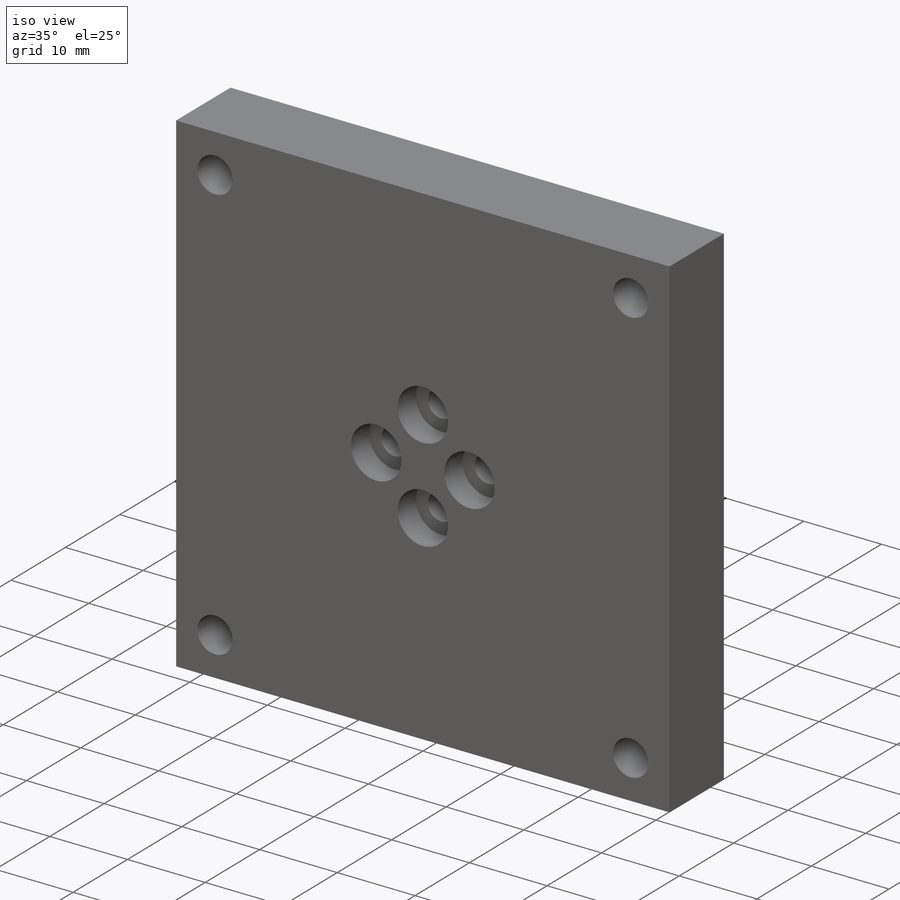
[diagram: iso view]
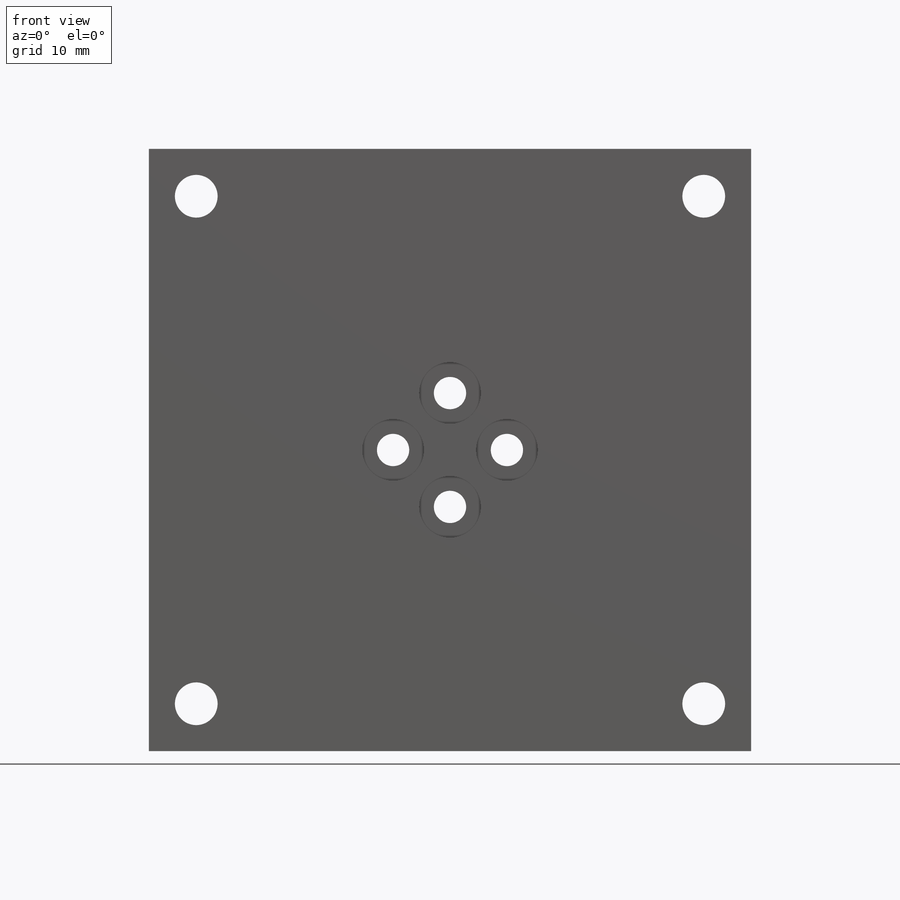
[diagram: front view]
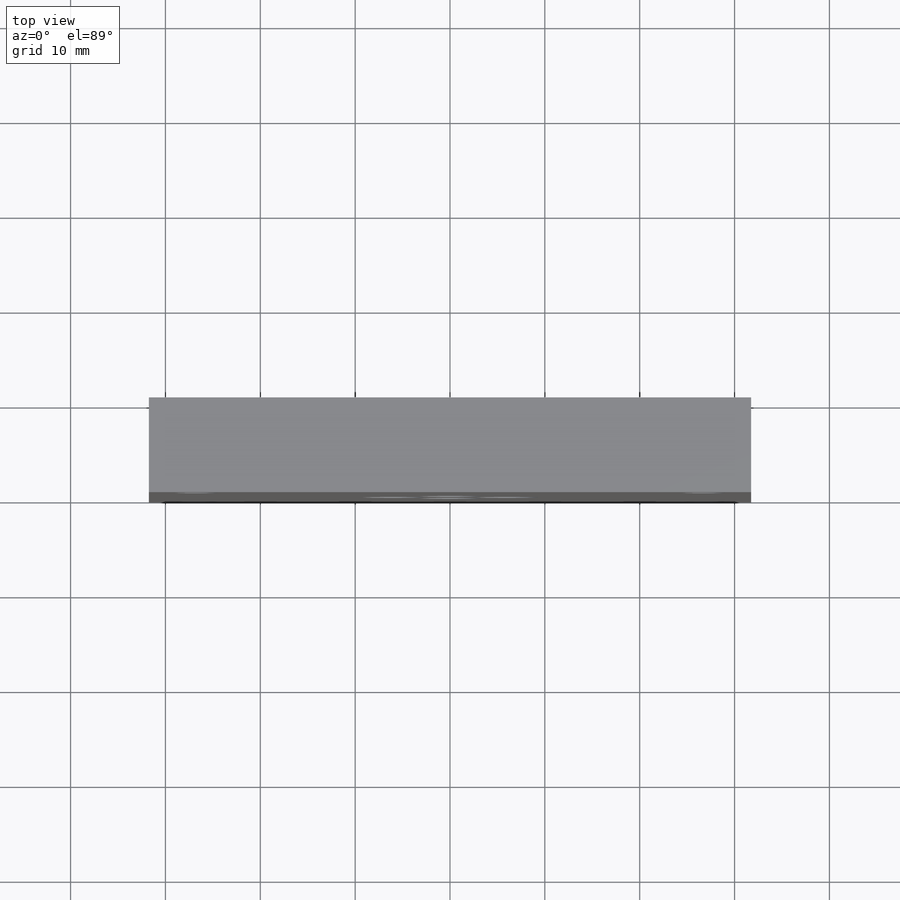
[diagram: top view]
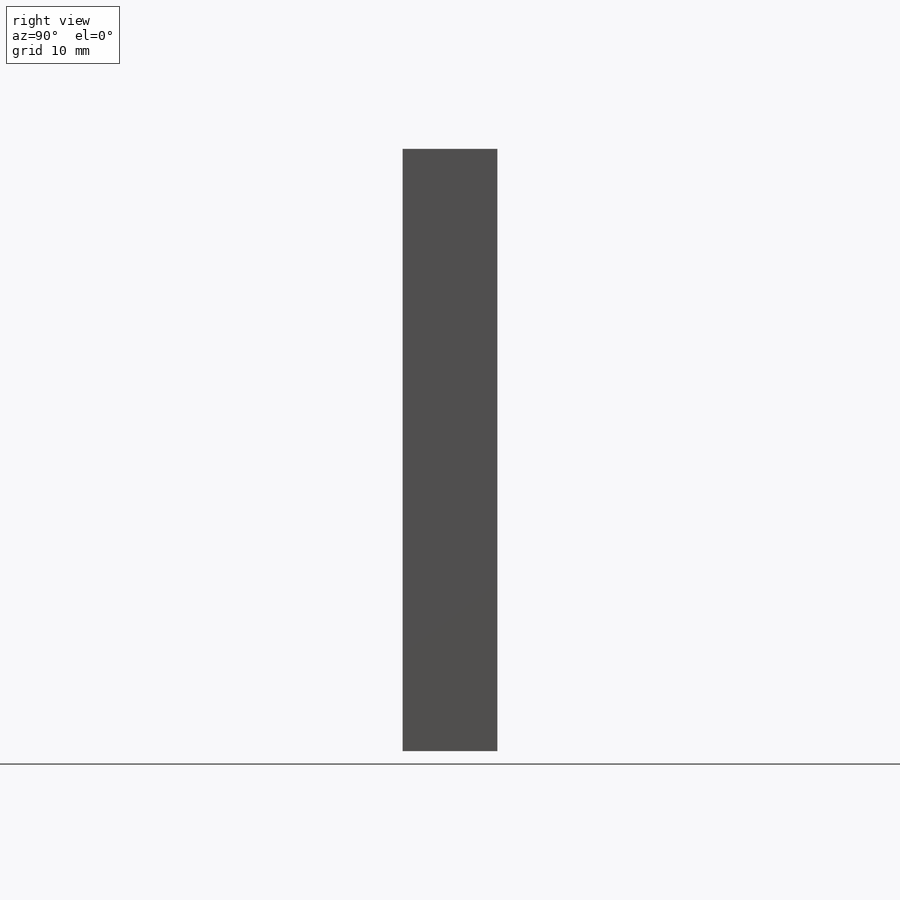
[diagram: right view]
SOLIDWORKS PART (.sldprt)
format: sldprt  version: not decoded by parser v0  size: 570,880 bytes
history: native  units: mm
features: sketch x8, plane x3, extrude x2, hole x2, fillet x2, material x1, cut_extrude x1 (+8 scaffold rows collapsed)
feature tree (27):
  scaffold x8  (default folders/planes/origin — collapsed)
  material  "Сплав 2024"
  plane  "Спереди"
  plane  "Сверху"
  plane  "Справа"
  sketch  "Эскиз1"  dims[D1=63.5mm D2=63.5mm]
  extrude  "Бобышка-Вытянуть1"  Depth=10mm
  sketch  "Эскиз2"  dims[D5=12.0mm D1=5.0mm D2=5.0mm D3=5.0mm D4=5.0mm]
  hole  "Цековка для винта с внутренним шестигранником M31"  [1 undecoded]
  sketch  "Эскиз4"
  sketch  "Эскиз3"  dims[hole-wizard template sketch: 42 standard entries collapsed; hole parameters kept: c12.Глубина сквозного отверстия=10.0mm c12.Диаметр цековки=6.5mm c12.Глубина цековки=3.4mm]
  hole  "Цековка для винта с внутренним шестигранником M41"  [1 undecoded]
  sketch  "Эскиз6"
  sketch  "Эскиз5"  dims[hole-wizard template sketch: 44 standard entries collapsed; hole parameters kept: c12.Глубина цековки=4.4mm]
  sketch  "Эскиз8"  dims[D6=3.0mm D7=3.0mm D8=25.0mm D1=3.0mm D2=3.0mm D3=3.0mm D4=3.0mm D5=3.0mm]
  cut_extrude  "Вырез-Вытянуть1"  Depth=3mm
  sketch  "Эскиз9"  dims[D1=1.5mm D2=1.5mm]
  extrude  "Бобышка-Вытянуть2"  [1 undecoded]
  fillet  "Скругление1"  Radius=3mm
  fillet  "Скругление2"  Radius=0.1mm
decode coverage: 10 of 15 modeling features carry decoded parameters
note: ~ marks probable driven/reference dimensions
note: 3 parameter values undecoded
summary: no parameter record found for 3 features
note: suppression state not decoded; provenance and decode notes live in map.json
